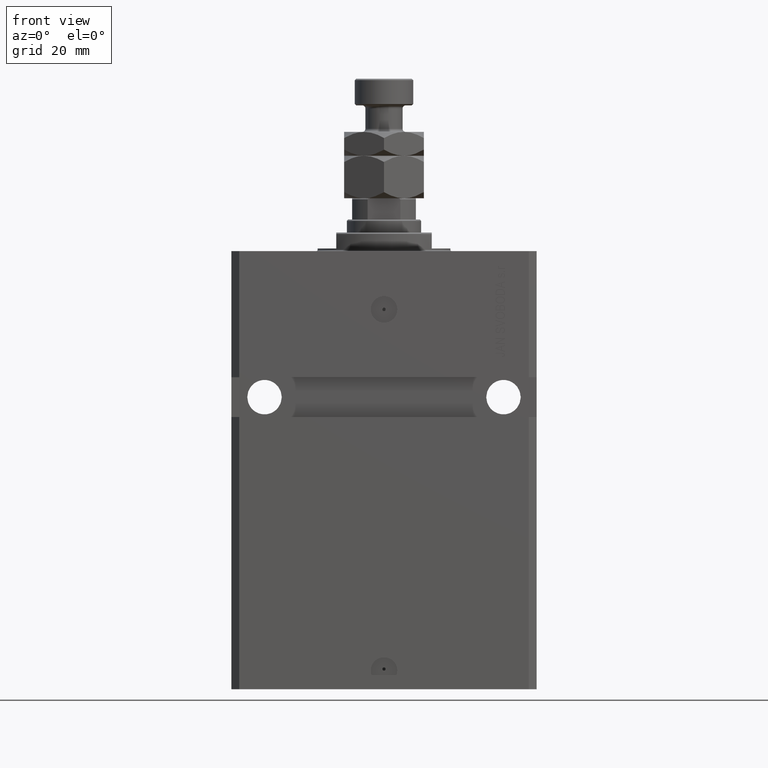
[diagram: clean part render]
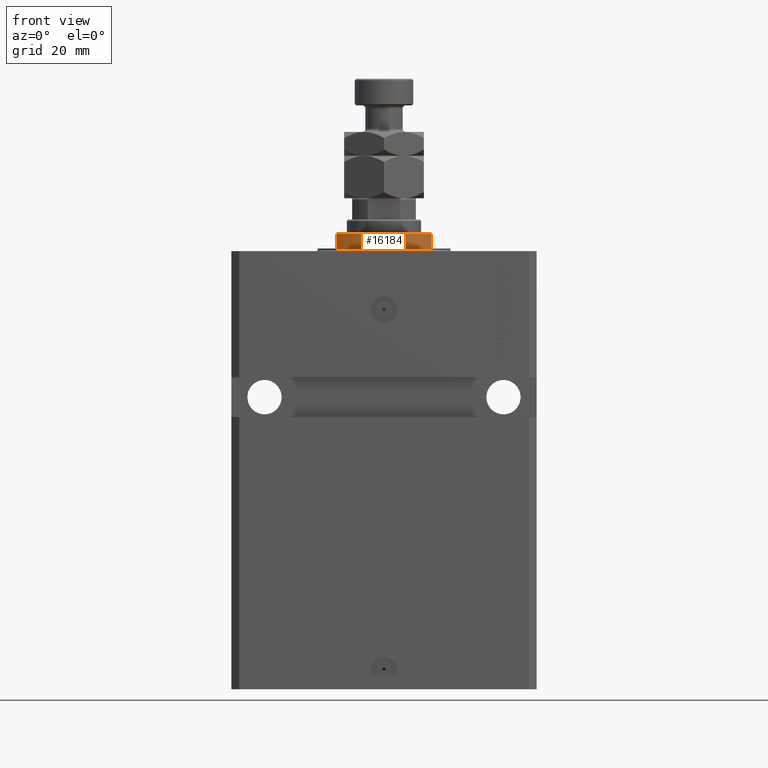
[diagram: same view with one face highlighted and labeled with its STEP entity id]
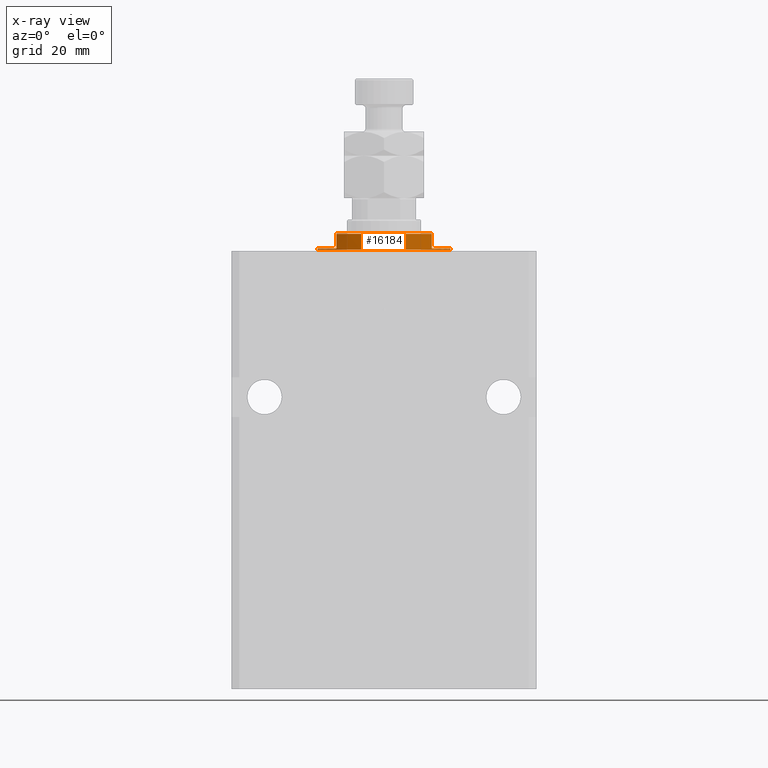
[diagram: x-ray of the same camera — body ghosted, the highlighted face saturated]
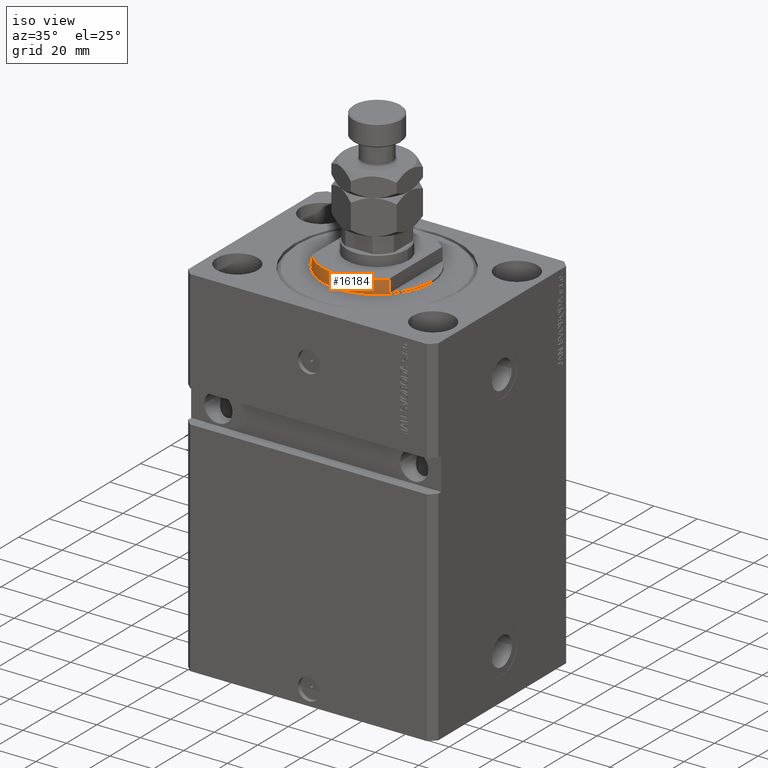
[diagram: same view with one face highlighted and labeled with its STEP entity id]
A machine part, front view. The second image highlights one B-rep face of the part: STEP entity #16184.
The next image is the same camera in x-ray: the body ghosted, the highlighted face saturated — about 0% of this face is hidden behind the body in this view.
A second angle (iso view) of the same face is appended — the face is thin or edge-on in the first view.
In plain terms, the highlighted cylindrical surface (partial cylindrical patch) has radius 25 mm, axis along (0, 0, -1).
Its self-contained STEP definition (entity closure, byte-faithful):
#168 = CARTESIAN_POINT ( 'NONE',  ( 18.00000000000000000, -17.34935157289747920, -6.499999999999971578 ) ) ;
#1694 = VERTEX_POINT ( 'NONE', #15083 ) ;
#2096 = CARTESIAN_POINT ( 'NONE',  ( 25.00000000000000000, 0.000000000000000000, -0.4999999999999995559 ) ) ;
#2263 = CARTESIAN_POINT ( 'NONE',  ( 18.00000000000000000, -17.34935157289747920, -1.000000000000000000 ) ) ;
#2712 = FACE_OUTER_BOUND ( 'NONE', #49953, .T. ) ;
#2973 = DIRECTION ( 'NONE',  ( 1.000000000000000000, 0.000000000000000000, 0.000000000000000000 ) ) ;
#5789 = DIRECTION ( 'NONE',  ( 0.000000000000000000, 0.000000000000000000, -1.000000000000000000 ) ) ;
#6041 = LINE ( 'NONE', #33058, #8583 ) ;
#6042 = ORIENTED_EDGE ( 'NONE', *, *, #37617, .F. ) ;
#6327 = DIRECTION ( 'NONE',  ( -0.000000000000000000, -0.000000000000000000, 1.000000000000000000 ) ) ;
#6860 = ORIENTED_EDGE ( 'NONE', *, *, #11688, .F. ) ;
#7387 = AXIS2_PLACEMENT_3D ( 'NONE', #30725, #6327, #2973 ) ;
#7525 = VECTOR ( 'NONE', #40722, 1000.000000000000000 ) ;
#7861 = CARTESIAN_POINT ( 'NONE',  ( 0.000000000000000000, 0.000000000000000000, -0.4999999999999995559 ) ) ;
#8367 = EDGE_CURVE ( 'NONE', #40789, #49399, #29011, .T. ) ;
#8583 = VECTOR ( 'NONE', #5789, 1000.000000000000000 ) ;
#8796 = CARTESIAN_POINT ( 'NONE',  ( -18.00000000000000000, -17.34935157289747920, -7.000000000000000000 ) ) ;
#9267 = DIRECTION ( 'NONE',  ( -1.000000000000000000, 0.000000000000000000, 0.000000000000000000 ) ) ;
#9558 = CIRCLE ( 'NONE', #21874, 25.00000000000000000 ) ;
#10011 = EDGE_CURVE ( 'NONE', #25900, #1694, #27403, .T. ) ;
#10971 = AXIS2_PLACEMENT_3D ( 'NONE', #7861, #16108, #16355 ) ;
#11574 = EDGE_CURVE ( 'NONE', #29445, #27082, #40278, .T. ) ;
#11688 = EDGE_CURVE ( 'NONE', #29900, #49399, #6041, .T. ) ;
#14542 = CYLINDRICAL_SURFACE ( 'NONE', #7387, 25.00000000000000000 ) ;
#15083 = CARTESIAN_POINT ( 'NONE',  ( -25.00000000000000000, 3.061616997868383043E-15, -1.000000000000000000 ) ) ;
#16108 = DIRECTION ( 'NONE',  ( -0.000000000000000000, -0.000000000000000000, -1.000000000000000000 ) ) ;
#16184 = ADVANCED_FACE ( 'NONE', ( #2712 ), #14542, .T. ) ;
#16355 = DIRECTION ( 'NONE',  ( 1.000000000000000000, 0.000000000000000000, 0.000000000000000000 ) ) ;
#16796 = VECTOR ( 'NONE', #48215, 1000.000000000000000 ) ;
#17071 = CARTESIAN_POINT ( 'NONE',  ( 25.00000000000000000, 0.000000000000000000, -1.000000000000000000 ) ) ;
#19175 = AXIS2_PLACEMENT_3D ( 'NONE', #19728, #35187, #50623 ) ;
#19410 = DIRECTION ( 'NONE',  ( 0.000000000000000000, 0.000000000000000000, -1.000000000000000000 ) ) ;
#19728 = CARTESIAN_POINT ( 'NONE',  ( 0.000000000000000000, 0.000000000000000000, -1.000000000000000000 ) ) ;
#20574 = CARTESIAN_POINT ( 'NONE',  ( 0.000000000000000000, 0.000000000000000000, -6.499999999999971578 ) ) ;
#20701 = CARTESIAN_POINT ( 'NONE',  ( 25.00000000000000000, 0.000000000000000000, -7.000000000000000000 ) ) ;
#21169 = CARTESIAN_POINT ( 'NONE',  ( -25.00000000000000000, 3.061616997868383043E-15, -7.000000000000000000 ) ) ;
#21874 = AXIS2_PLACEMENT_3D ( 'NONE', #47482, #19410, #47224 ) ;
#22113 = CARTESIAN_POINT ( 'NONE',  ( -18.00000000000000000, -17.34935157289747920, -6.499999999999969802 ) ) ;
#23469 = EDGE_CURVE ( 'NONE', #25900, #40789, #38029, .T. ) ;
#24062 = AXIS2_PLACEMENT_3D ( 'NONE', #20574, #40420, #9267 ) ;
#24117 = ORIENTED_EDGE ( 'NONE', *, *, #30339, .F. ) ;
#25900 = VERTEX_POINT ( 'NONE', #47694 ) ;
#27082 = VERTEX_POINT ( 'NONE', #2096 ) ;
#27403 = CIRCLE ( 'NONE', #19175, 25.00000000000000000 ) ;
#28682 = DIRECTION ( 'NONE',  ( -0.000000000000000000, -0.000000000000000000, 1.000000000000000000 ) ) ;
#29011 = CIRCLE ( 'NONE', #24062, 25.00000000000000000 ) ;
#29076 = EDGE_CURVE ( 'NONE', #27082, #41726, #33185, .T. ) ;
#29445 = VERTEX_POINT ( 'NONE', #17071 ) ;
#29900 = VERTEX_POINT ( 'NONE', #2263 ) ;
#29927 = ORIENTED_EDGE ( 'NONE', *, *, #10011, .F. ) ;
#30339 = EDGE_CURVE ( 'NONE', #1694, #41726, #37630, .T. ) ;
#30725 = CARTESIAN_POINT ( 'NONE',  ( 0.000000000000000000, 0.000000000000000000, -7.000000000000000000 ) ) ;
#33058 = CARTESIAN_POINT ( 'NONE',  ( 18.00000000000000000, -17.34935157289747920, -7.000000000000000000 ) ) ;
#33185 = CIRCLE ( 'NONE', #10971, 25.00000000000000000 ) ;
#35187 = DIRECTION ( 'NONE',  ( 0.000000000000000000, 0.000000000000000000, -1.000000000000000000 ) ) ;
#35694 = VECTOR ( 'NONE', #28682, 1000.000000000000000 ) ;
#37617 = EDGE_CURVE ( 'NONE', #29445, #29900, #9558, .T. ) ;
#37630 = LINE ( 'NONE', #21169, #16796 ) ;
#38029 = LINE ( 'NONE', #8796, #7525 ) ;
#40233 = ORIENTED_EDGE ( 'NONE', *, *, #8367, .T. ) ;
#40278 = LINE ( 'NONE', #20701, #35694 ) ;
#40420 = DIRECTION ( 'NONE',  ( 0.000000000000000000, 0.000000000000000000, 1.000000000000000000 ) ) ;
#40722 = DIRECTION ( 'NONE',  ( 0.000000000000000000, 0.000000000000000000, -1.000000000000000000 ) ) ;
#40789 = VERTEX_POINT ( 'NONE', #22113 ) ;
#41477 = ORIENTED_EDGE ( 'NONE', *, *, #23469, .T. ) ;
#41726 = VERTEX_POINT ( 'NONE', #47732 ) ;
#47224 = DIRECTION ( 'NONE',  ( -1.000000000000000000, 0.000000000000000000, 0.000000000000000000 ) ) ;
#47482 = CARTESIAN_POINT ( 'NONE',  ( 0.000000000000000000, 0.000000000000000000, -1.000000000000000000 ) ) ;
#47694 = CARTESIAN_POINT ( 'NONE',  ( -18.00000000000000000, -17.34935157289747920, -1.000000000000000000 ) ) ;
#47732 = CARTESIAN_POINT ( 'NONE',  ( -25.00000000000000000, 3.061616997868383043E-15, -0.4999999999999995559 ) ) ;
#48121 = ORIENTED_EDGE ( 'NONE', *, *, #29076, .T. ) ;
#48215 = DIRECTION ( 'NONE',  ( -0.000000000000000000, -0.000000000000000000, 1.000000000000000000 ) ) ;
#49399 = VERTEX_POINT ( 'NONE', #168 ) ;
#49953 = EDGE_LOOP ( 'NONE', ( #24117, #29927, #41477, #40233, #6860, #6042, #50280, #48121 ) ) ;
#50280 = ORIENTED_EDGE ( 'NONE', *, *, #11574, .T. ) ;
#50623 = DIRECTION ( 'NONE',  ( -1.000000000000000000, 0.000000000000000000, 0.000000000000000000 ) ) ;